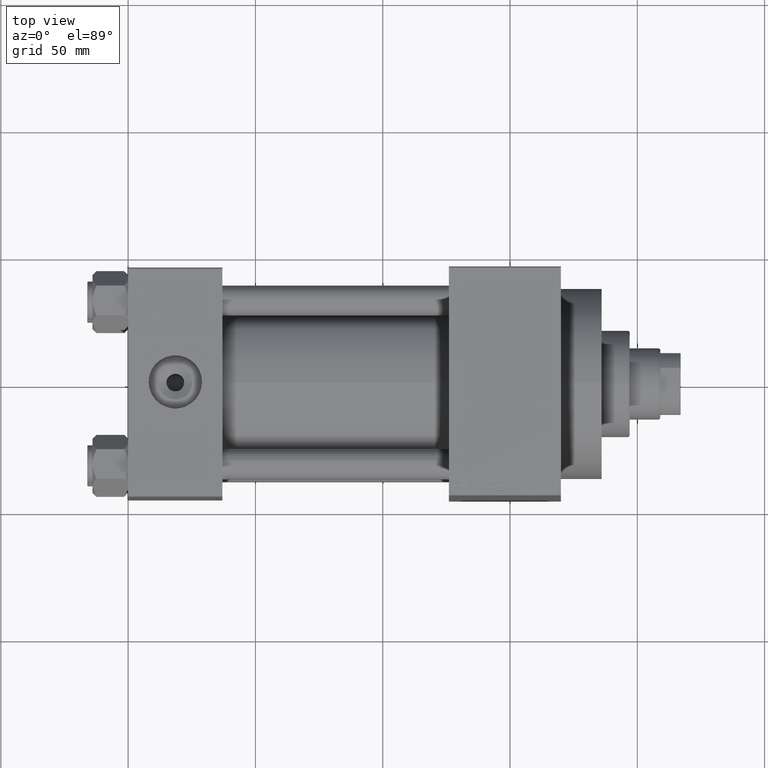
[diagram: clean part render]
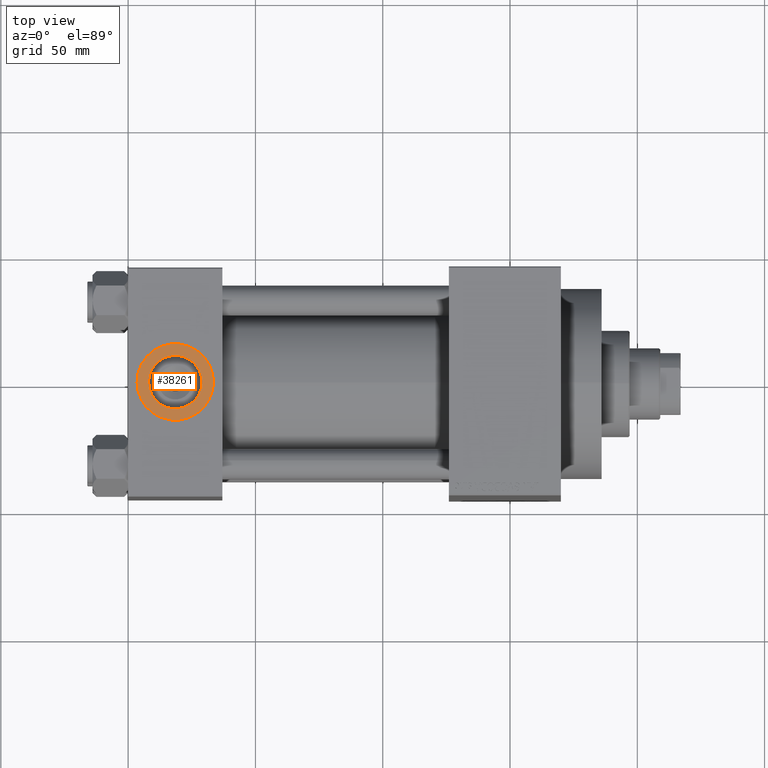
[diagram: same view with one face highlighted and labeled with its STEP entity id]
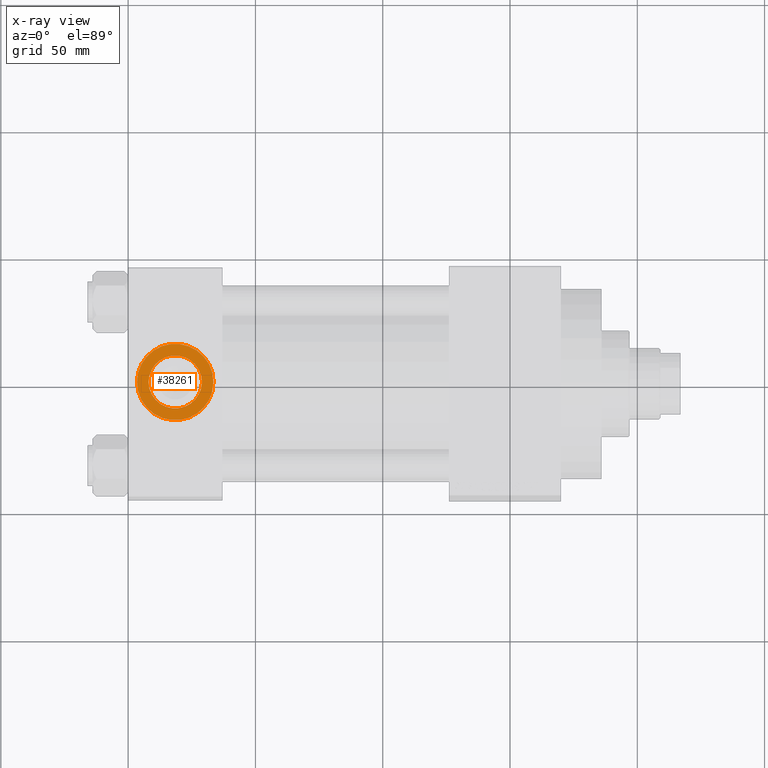
[diagram: x-ray of the same camera — body ghosted, the highlighted face saturated]
A machine part, top view. The second image highlights one B-rep face of the part: STEP entity #38261.
The next image is the same camera in x-ray: the body ghosted, the highlighted face saturated — about 0% of this face is hidden behind the body in this view.
In plain terms, the highlighted planar face has unit normal (0, 0, 1).
Its self-contained STEP definition (entity closure, byte-faithful):
#403 = EDGE_LOOP ( 'NONE', ( #22730, #39297 ) ) ;
#1229 = DIRECTION ( 'NONE',  ( 1.000000000000000000, 0.000000000000000000, -0.000000000000000000 ) ) ;
#1283 = CARTESIAN_POINT ( 'NONE',  ( 18.50000000000000000, -8.673617379884038628E-15, 44.80000000000000426 ) ) ;
#3175 = AXIS2_PLACEMENT_3D ( 'NONE', #1283, #37502, #4623 ) ;
#4026 = DIRECTION ( 'NONE',  ( 0.000000000000000000, 0.000000000000000000, 1.000000000000000000 ) ) ;
#4623 = DIRECTION ( 'NONE',  ( 1.000000000000000000, 0.000000000000000000, 0.000000000000000000 ) ) ;
#4698 = AXIS2_PLACEMENT_3D ( 'NONE', #8492, #5614, #20021 ) ;
#5614 = DIRECTION ( 'NONE',  ( 0.000000000000000000, 0.000000000000000000, 1.000000000000000000 ) ) ;
#5948 = VERTEX_POINT ( 'NONE', #40634 ) ;
#6146 = PLANE ( 'NONE',  #27015 ) ;
#7313 = DIRECTION ( 'NONE',  ( 0.000000000000000000, 0.000000000000000000, 1.000000000000000000 ) ) ;
#8492 = CARTESIAN_POINT ( 'NONE',  ( 18.50000000000000000, -8.673617379884038628E-15, 44.80000000000000426 ) ) ;
#9506 = AXIS2_PLACEMENT_3D ( 'NONE', #26101, #4026, #47429 ) ;
#11289 = VERTEX_POINT ( 'NONE', #19325 ) ;
#12096 = CARTESIAN_POINT ( 'NONE',  ( 18.50000000000000000, -8.673617379884038628E-15, 44.80000000000000426 ) ) ;
#12884 = FACE_BOUND ( 'NONE', #17317, .T. ) ;
#13098 = CIRCLE ( 'NONE', #3175, 10.48000000000000043 ) ;
#14307 = ORIENTED_EDGE ( 'NONE', *, *, #34704, .F. ) ;
#17317 = EDGE_LOOP ( 'NONE', ( #14307, #42575 ) ) ;
#18661 = VERTEX_POINT ( 'NONE', #33029 ) ;
#19325 = CARTESIAN_POINT ( 'NONE',  ( 28.98000000000000043, -8.673617379884038628E-15, 44.80000000000000426 ) ) ;
#20021 = DIRECTION ( 'NONE',  ( 1.000000000000000000, 0.000000000000000000, 0.000000000000000000 ) ) ;
#22730 = ORIENTED_EDGE ( 'NONE', *, *, #30005, .T. ) ;
#23303 = AXIS2_PLACEMENT_3D ( 'NONE', #12096, #7313, #25805 ) ;
#23989 = EDGE_CURVE ( 'NONE', #42178, #18661, #26146, .T. ) ;
#25805 = DIRECTION ( 'NONE',  ( 1.000000000000000000, 0.000000000000000000, 0.000000000000000000 ) ) ;
#26101 = CARTESIAN_POINT ( 'NONE',  ( 18.50000000000000000, -8.673617379884038628E-15, 44.80000000000000426 ) ) ;
#26146 = CIRCLE ( 'NONE', #4698, 15.00000000000000355 ) ;
#27015 = AXIS2_PLACEMENT_3D ( 'NONE', #41032, #37446, #1229 ) ;
#27527 = FACE_OUTER_BOUND ( 'NONE', #403, .T. ) ;
#30005 = EDGE_CURVE ( 'NONE', #18661, #42178, #34019, .T. ) ;
#30913 = EDGE_CURVE ( 'NONE', #5948, #11289, #45533, .T. ) ;
#33029 = CARTESIAN_POINT ( 'NONE',  ( 33.50000000000000000, -8.673617379884038628E-15, 44.80000000000000426 ) ) ;
#34019 = CIRCLE ( 'NONE', #23303, 15.00000000000000355 ) ;
#34704 = EDGE_CURVE ( 'NONE', #11289, #5948, #13098, .T. ) ;
#37446 = DIRECTION ( 'NONE',  ( 0.000000000000000000, 0.000000000000000000, 1.000000000000000000 ) ) ;
#37502 = DIRECTION ( 'NONE',  ( 0.000000000000000000, 0.000000000000000000, 1.000000000000000000 ) ) ;
#38261 = ADVANCED_FACE ( 'NONE', ( #12884, #27527 ), #6146, .T. ) ;
#39297 = ORIENTED_EDGE ( 'NONE', *, *, #23989, .T. ) ;
#40634 = CARTESIAN_POINT ( 'NONE',  ( 8.019999999999999574, -7.390187534377611561E-15, 44.80000000000000426 ) ) ;
#41032 = CARTESIAN_POINT ( 'NONE',  ( 18.50000000000000000, -8.673617379884038628E-15, 44.80000000000000426 ) ) ;
#42178 = VERTEX_POINT ( 'NONE', #44394 ) ;
#42575 = ORIENTED_EDGE ( 'NONE', *, *, #30913, .F. ) ;
#44394 = CARTESIAN_POINT ( 'NONE',  ( 3.499999999999997780, -6.836647181163008250E-15, 44.80000000000000426 ) ) ;
#45533 = CIRCLE ( 'NONE', #9506, 10.48000000000000043 ) ;
#47429 = DIRECTION ( 'NONE',  ( 1.000000000000000000, 0.000000000000000000, 0.000000000000000000 ) ) ;